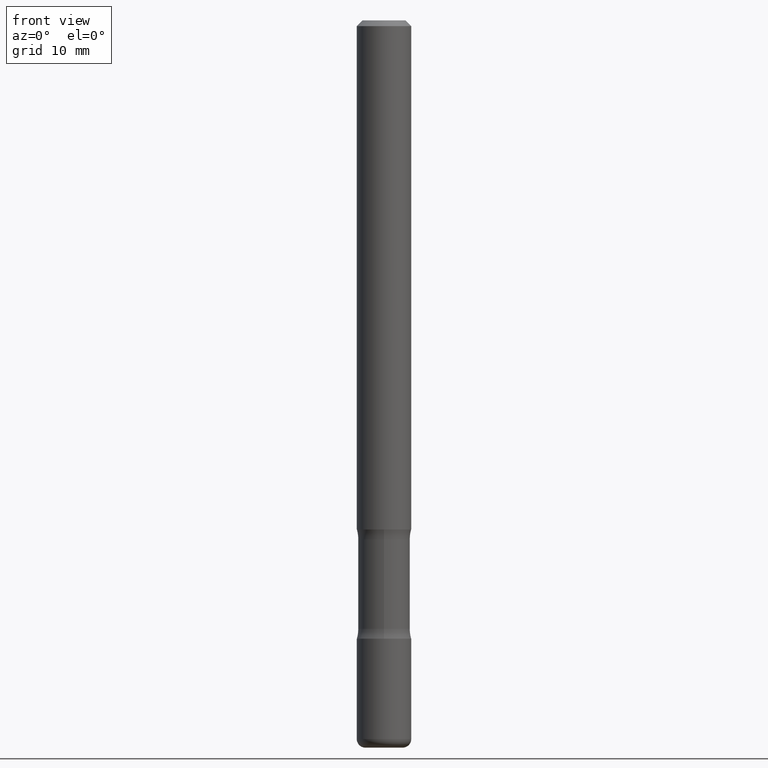
[diagram: clean part render]
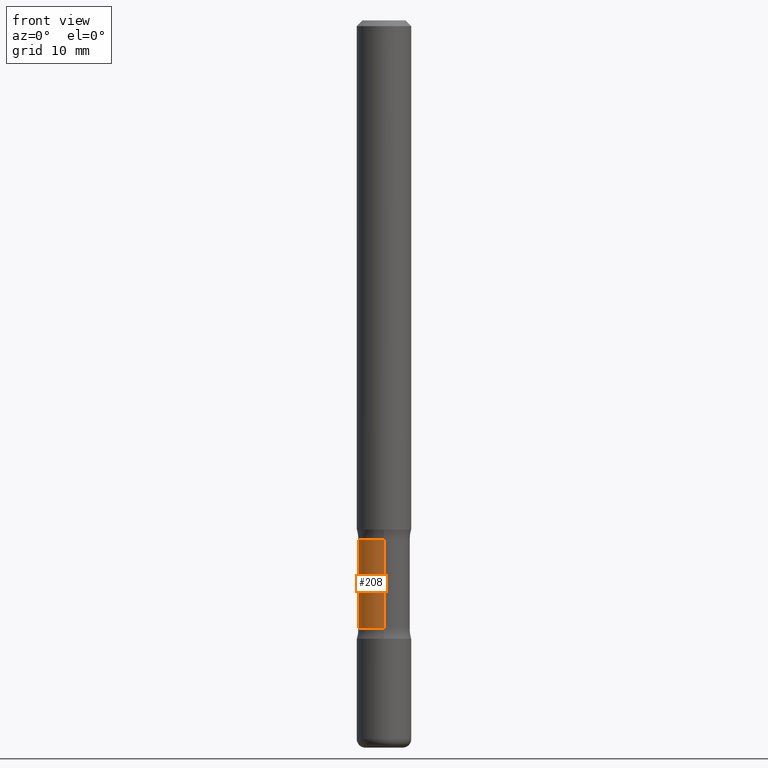
[diagram: same view with one face highlighted and labeled with its STEP entity id]
A machine part, front view. The second image highlights one B-rep face of the part: STEP entity #208.
In plain terms, the highlighted cylindrical surface (edge-blend (fillet) strip) has radius 2.2622 mm, axis along (0, -0, -1).
Its self-contained STEP definition (entity closure, byte-faithful):
#1 = EDGE_CURVE ( 'NONE', #408, #203, #354, .T. ) ;
#5 = DIRECTION ( 'NONE',  ( 6.982962677686265133E-15, 1.000000000000000000, -3.067338098149350666E-15 ) ) ;
#10 = DIRECTION ( 'NONE',  ( 2.553476385947133355E-29, -3.336808337214295667E-15, -1.000000000000000000 ) ) ;
#34 = CARTESIAN_POINT ( 'NONE',  ( 6.219201134814940684E-16, 0.08906249999999125977, -2.500000000000000444 ) ) ;
#40 = CIRCLE ( 'NONE', #547, 0.08906249999999994726 ) ;
#65 = EDGE_CURVE ( 'NONE', #224, #408, #284, .T. ) ;
#104 = DIRECTION ( 'NONE',  ( 6.982962677686265133E-15, 1.000000000000000000, -6.134676196298701332E-15 ) ) ;
#133 = CARTESIAN_POINT ( 'NONE',  ( 5.110032292609207884E-29, -7.306245973522905960E-15, -2.091089789977795821 ) ) ;
#138 = AXIS2_PLACEMENT_3D ( 'NONE', #455, #10, #104 ) ;
#145 = EDGE_CURVE ( 'NONE', #224, #324, #40, .T. ) ;
#162 = LINE ( 'NONE', #34, #439 ) ;
#189 = CARTESIAN_POINT ( 'NONE',  ( 4.325656488947447574E-29, -6.281246590105103764E-15, -1.783910210022204623 ) ) ;
#201 = VECTOR ( 'NONE', #233, 39.37007874015748143 ) ;
#203 = VERTEX_POINT ( 'NONE', #364 ) ;
#208 = ADVANCED_FACE ( 'NONE', ( #460 ), #458, .T. ) ;
#211 = CARTESIAN_POINT ( 'NONE',  ( -6.270923951087521301E-16, -0.08906250000000723310, -2.091089789977795377 ) ) ;
#217 = ORIENTED_EDGE ( 'NONE', *, *, #529, .T. ) ;
#224 = VERTEX_POINT ( 'NONE', #495 ) ;
#228 = CARTESIAN_POINT ( 'NONE',  ( 6.219201134814759246E-16, 0.08906249999999366063, -1.783910210022204845 ) ) ;
#233 = DIRECTION ( 'NONE',  ( 2.553476385947133355E-29, -3.336808337214295667E-15, -1.000000000000000000 ) ) ;
#248 = DIRECTION ( 'NONE',  ( 2.553476385947133355E-29, -3.336808337214295667E-15, -1.000000000000000000 ) ) ;
#259 = ORIENTED_EDGE ( 'NONE', *, *, #145, .T. ) ;
#284 = LINE ( 'NONE', #318, #201 ) ;
#299 = ORIENTED_EDGE ( 'NONE', *, *, #65, .F. ) ;
#318 = CARTESIAN_POINT ( 'NONE',  ( -6.110131029264649859E-16, -0.08906250000000860700, -2.499999999999999556 ) ) ;
#324 = VERTEX_POINT ( 'NONE', #228 ) ;
#327 = AXIS2_PLACEMENT_3D ( 'NONE', #133, #449, #5 ) ;
#348 = EDGE_LOOP ( 'NONE', ( #299, #259, #217, #550 ) ) ;
#354 = CIRCLE ( 'NONE', #327, 0.08906249999999993339 ) ;
#364 = CARTESIAN_POINT ( 'NONE',  ( 6.219201134814836160E-16, 0.08906249999999261979, -2.091089789977795821 ) ) ;
#408 = VERTEX_POINT ( 'NONE', #211 ) ;
#439 = VECTOR ( 'NONE', #248, 39.37007874015748143 ) ;
#449 = DIRECTION ( 'NONE',  ( 2.553476385947133355E-29, -3.336808337214295667E-15, -1.000000000000000000 ) ) ;
#455 = CARTESIAN_POINT ( 'NONE',  ( 6.154174857873591467E-29, -8.670700971497045879E-15, -2.500000000000000000 ) ) ;
#458 = CYLINDRICAL_SURFACE ( 'NONE', #138, 0.08906249999999993339 ) ;
#460 = FACE_OUTER_BOUND ( 'NONE', #348, .T. ) ;
#491 = DIRECTION ( 'NONE',  ( 2.553476385947133355E-29, -3.336808337214295667E-15, -1.000000000000000000 ) ) ;
#493 = DIRECTION ( 'NONE',  ( 6.982962677686265133E-15, 1.000000000000000000, -3.067338098149349877E-15 ) ) ;
#495 = CARTESIAN_POINT ( 'NONE',  ( -6.270923951087611034E-16, -0.08906250000000623390, -1.783910210022204401 ) ) ;
#529 = EDGE_CURVE ( 'NONE', #324, #203, #162, .T. ) ;
#547 = AXIS2_PLACEMENT_3D ( 'NONE', #189, #491, #493 ) ;
#550 = ORIENTED_EDGE ( 'NONE', *, *, #1, .F. ) ;